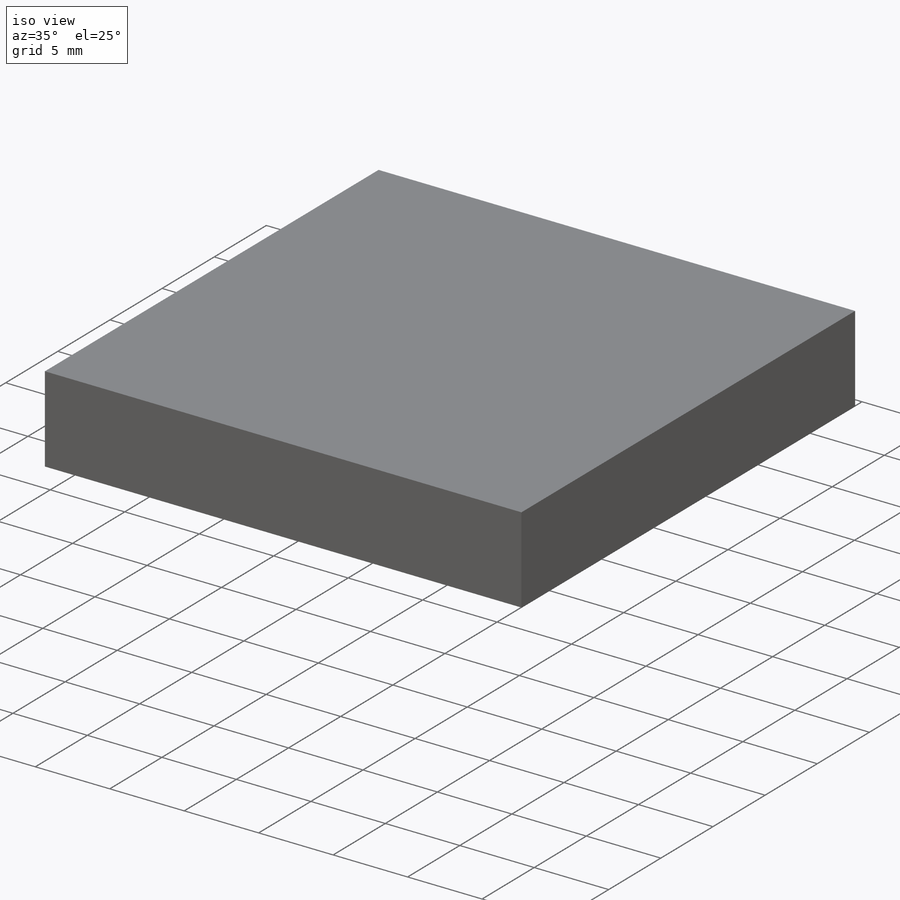
[diagram: iso view]
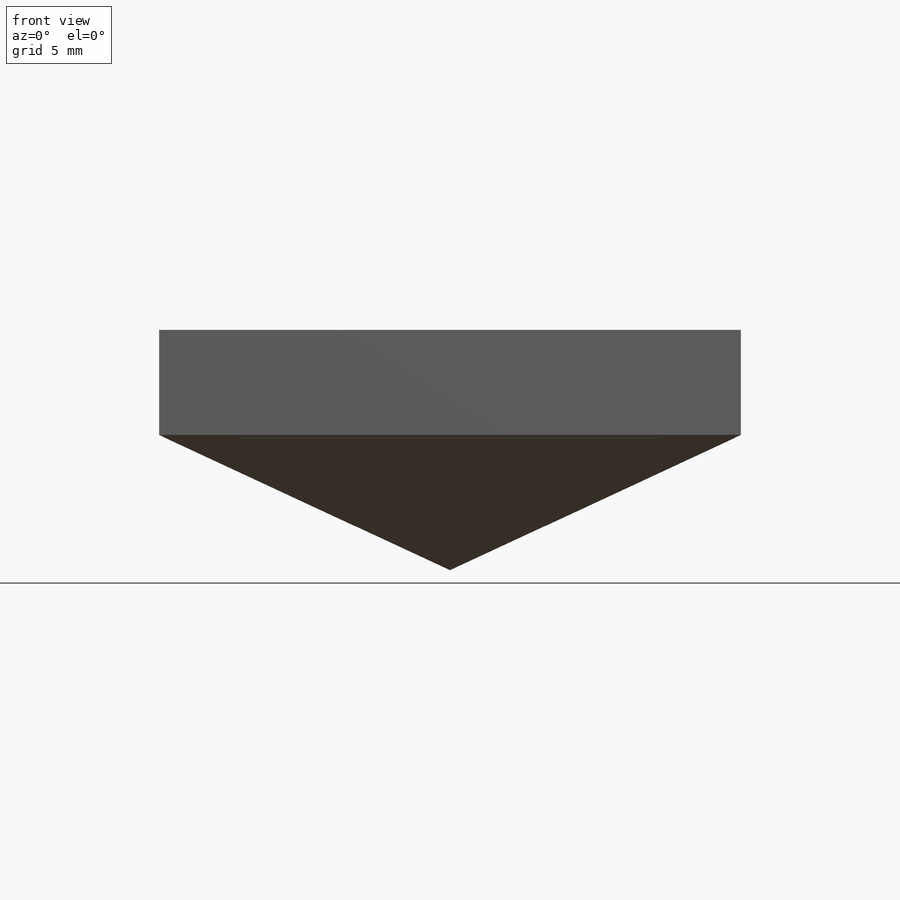
[diagram: front view]
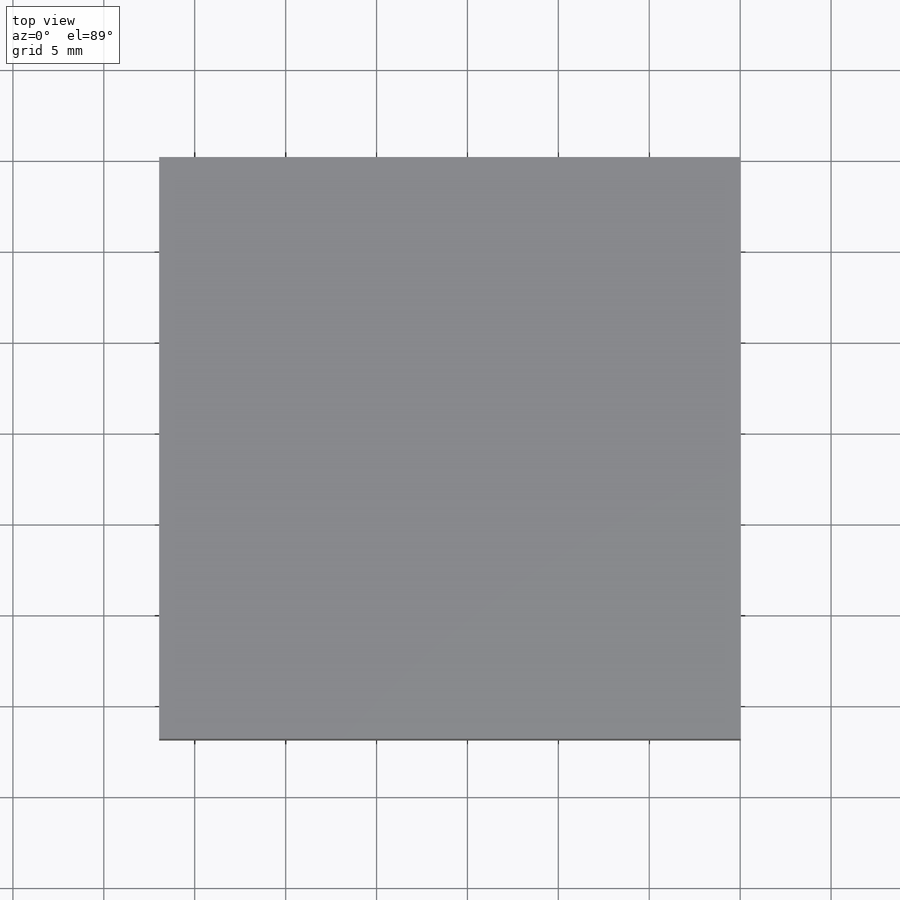
[diagram: top view]
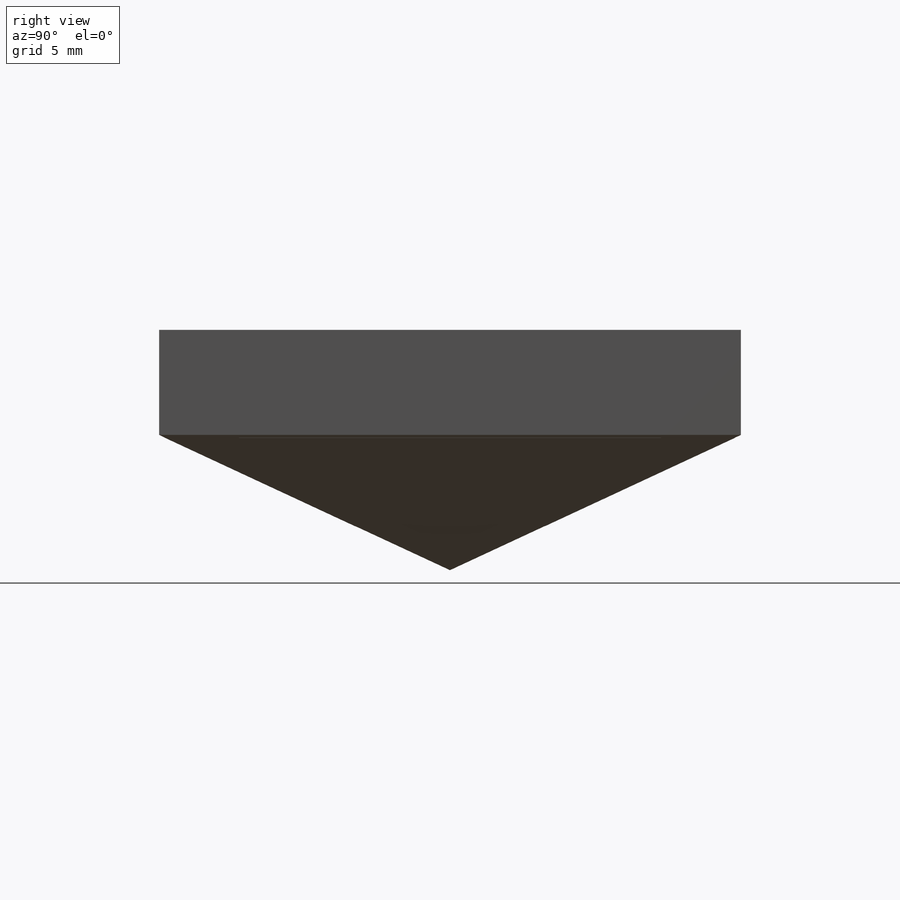
[diagram: right view]
SOLIDWORKS PART (.sldprt)
format: sldprt  version: not decoded by parser v0  size: 207,872 bytes
history: native  units: mm
features: sketch x6, extrude x5, plane x3, material x1, cut_extrude x1 (+9 scaffold rows collapsed)
feature tree (25):
  scaffold x9  (default folders/planes/origin — collapsed)
  material  "Material <sin especificar>"
  plane  "Alzado"
  plane  "Planta"
  plane  "Vista lateral"
  sketch  "Croquis1"  dims[D1=~0.56889mm]
  extrude  "Saliente-Extruir1"  Depth=32mm
  sketch  "Croquis2"  dims[D1=16.0mm]
  cut_extrude  "Cortar-Extruir1"  Depth=33mm
  sketch  "Croquis16"  dims[D1=~3.540001mm]
  extrude  "Saliente-Extruir12"  Depth=0.01mm
  sketch  "Croquis17"  dims[D1=~53.706094mm]
  extrude  "Saliente-Extruir13"  Depth=0.01mm
  sketch  "Croquis18"  dims[D1=~0.101196mm]
  extrude  "Saliente-Extruir14"  Depth=0.01mm
  sketch  "Croquis19"  dims[D1=~0.595919mm]
  extrude  "Saliente-Extruir15"  Depth=0.01mm
decode coverage: 12 of 12 modeling features carry decoded parameters
note: ~ marks probable driven/reference dimensions
note: suppression state not decoded; provenance and decode notes live in map.json
